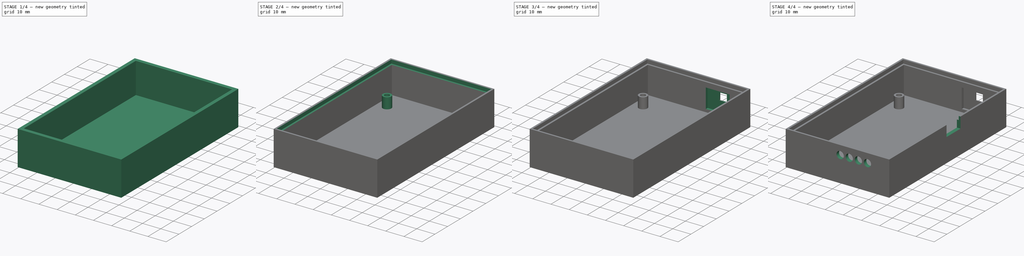
[diagram: build sequence overview — one tinted view per stage of 4, left to right]
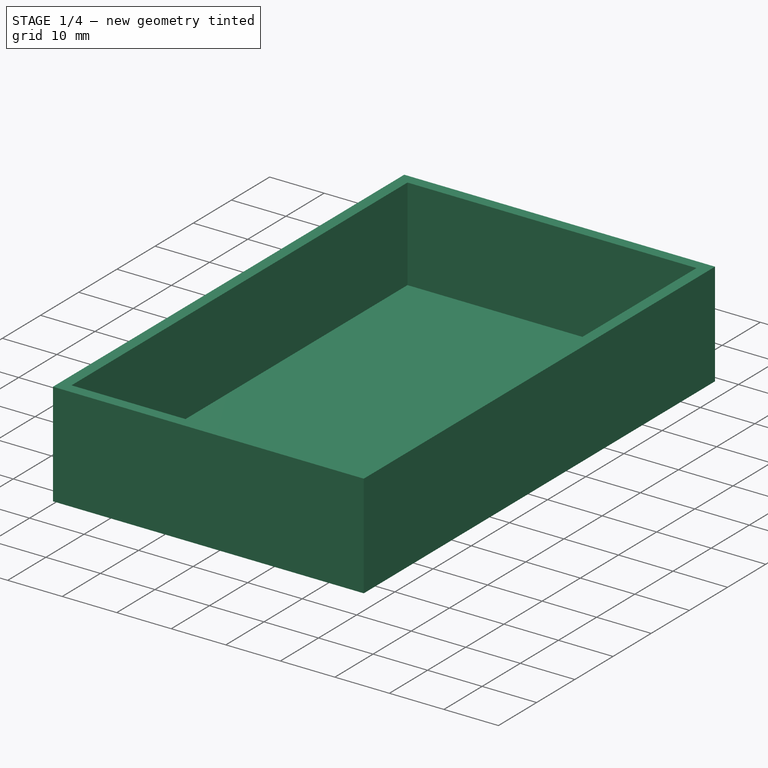
[diagram: stage 1 of 4 — iso view after this stage's code; geometry added in this stage tinted green]
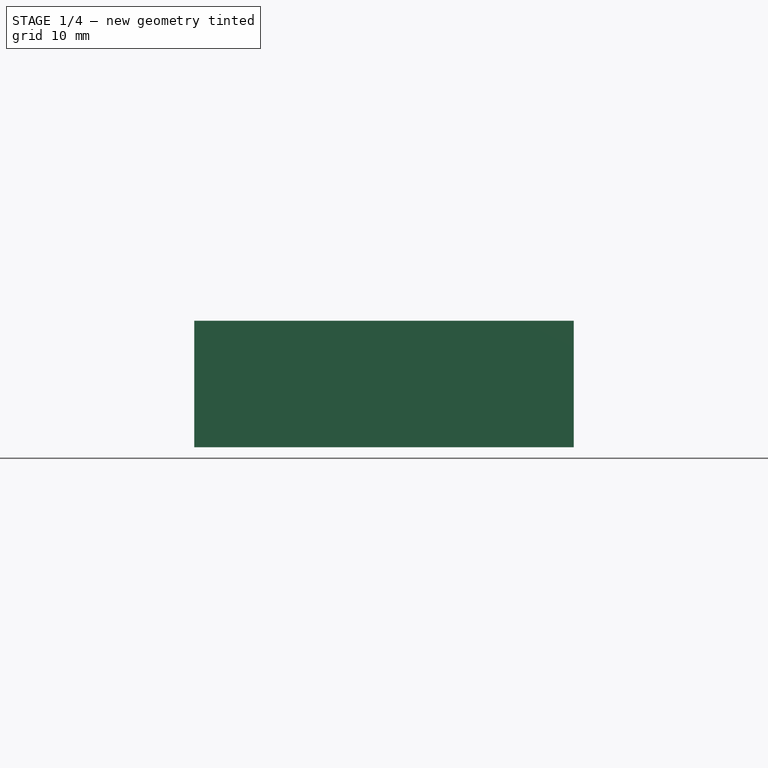
[diagram: stage 1 of 4 — front view after this stage's code; geometry added in this stage tinted green]
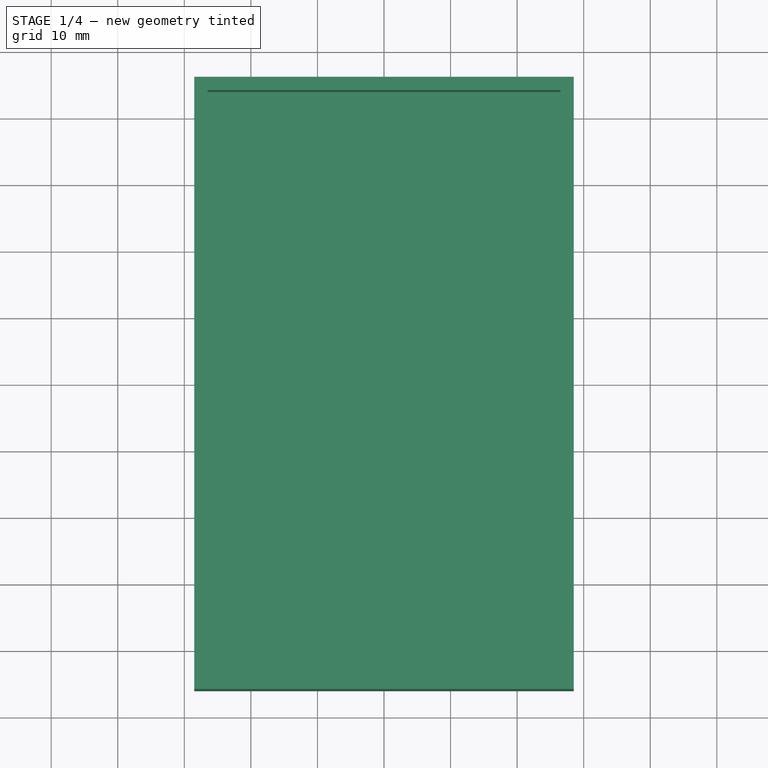
[diagram: stage 1 of 4 — top view after this stage's code; geometry added in this stage tinted green]
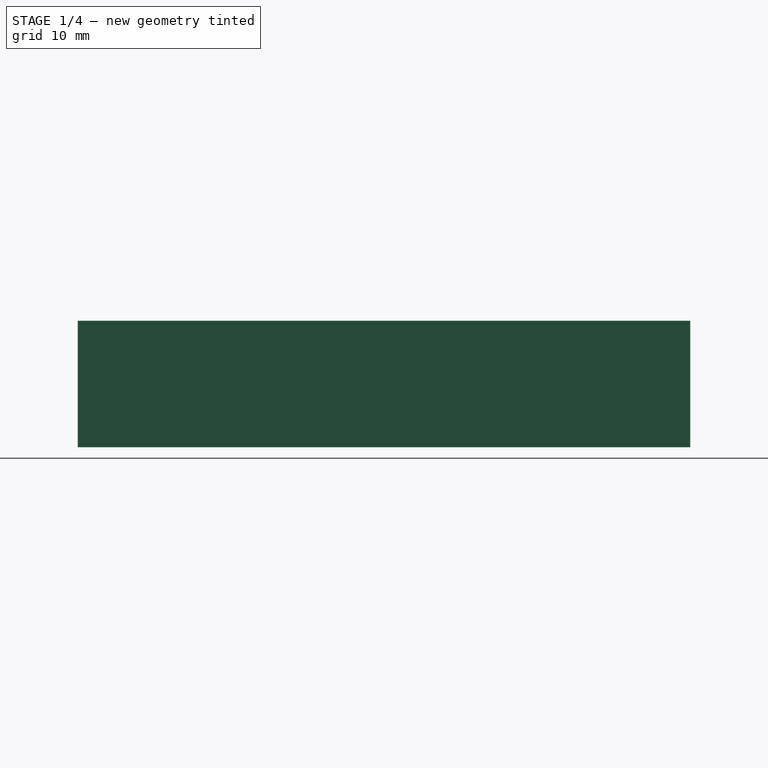
[diagram: stage 1 of 4 — right view after this stage's code; geometry added in this stage tinted green]
FCSTD DOCUMENT  (FreeCAD 0.18R16158 (Git))
Label: weather_station_back
License: All rights reserved
LicenseURL: http://en.wikipedia.org/wiki/All_rights_reserved
objects: Sketcher::SketchObject×9, PartDesign::Pocket×5, PartDesign::Pad×4, Spreadsheet::Sheet×1, PartDesign::Body×1
note: 28 computed .brp shape members not serialized (recipe doc carries the construction recipe); baked Part::Feature solids carry a one-line shape summary decoded from their .brp

FEATURE [Sketcher::SketchObject] Sketch
  MapMode = 5
  Support = -> [XY_Plane]
  sketch-geometry (4):
    g0: LineSegment StartX=-28.5 StartY=46 StartZ=0 EndX=28.5 EndY=46 EndZ=0
    g1: LineSegment StartX=28.5 StartY=46 StartZ=0 EndX=28.5 EndY=-46 EndZ=0
    g2: LineSegment StartX=28.5 StartY=-46 StartZ=0 EndX=-28.5 EndY=-46 EndZ=0
    g3: LineSegment StartX=-28.5 StartY=-46 StartZ=0 EndX=-28.5 EndY=46 EndZ=0
  constraints (11):
    c: Coincident(g0,g1)
    c: Coincident(g1,g2)
    c: Coincident(g2,g3)
    c: Coincident(g3,g0)
    c: Horizontal(g0)
    c: Horizontal(g2)
    c: Vertical(g1)
    c: Vertical(g3)
    c: Symmetric(g0,g1,g-1)
    c: DistanceY(g1,g1) = 92
    c: DistanceX(g0,g0) = 57
FEATURE [PartDesign::Pad] Pad  label="back_wall"
  Length = 2
  Length2 = 100
  Profile = -> Sketch
  Reversed = true
  Type = 0
  expr: Length = Spreadsheet.wall
FEATURE [Sketcher::SketchObject] Sketch001
  ExternalGeometry = -> [Pad]
  MapMode = 5
  Support = -> [Pad]
  expr: Constraints[9] = Spreadsheet.wall
  expr: Constraints[10] = Spreadsheet.wall
  expr: Constraints[8] = Spreadsheet.wall
  expr: Constraints[11] = Spreadsheet.wall
  sketch-geometry (8):
    g0: LineSegment StartX=-26.5 StartY=44 StartZ=0 EndX=26.5 EndY=44 EndZ=0
    g1: LineSegment StartX=26.5 StartY=44 StartZ=0 EndX=26.5 EndY=-44 EndZ=0
    g2: LineSegment StartX=26.5 StartY=-44 StartZ=0 EndX=-26.5 EndY=-44 EndZ=0
    g3: LineSegment StartX=-26.5 StartY=-44 StartZ=0 EndX=-26.5 EndY=44 EndZ=0
    g4: LineSegment StartX=-28.5 StartY=46 StartZ=0 EndX=28.5 EndY=46 EndZ=0
    g5: LineSegment StartX=28.5 StartY=46 StartZ=0 EndX=28.5 EndY=-46 EndZ=0
    g6: LineSegment StartX=28.5 StartY=-46 StartZ=0 EndX=-28.5 EndY=-46 EndZ=0
    g7: LineSegment StartX=-28.5 StartY=-46 StartZ=0 EndX=-28.5 EndY=46 EndZ=0
  constraints (22):
    c: Coincident(g0,g1)
    c: Coincident(g1,g2)
    c: Coincident(g2,g3)
    c: Coincident(g3,g0)
    c: Horizontal(g0)
    c: Horizontal(g2)
    c: Vertical(g1)
    c: Vertical(g3)
    c: DistanceY(g0,g-6) = 2
    c: DistanceY(g-6,g1) = 2
    c: DistanceX(g-4,g0) = 2
    c: DistanceX(g0,g-6) = 2
    c: Coincident(g4,g5)
    c: Coincident(g5,g6)
    c: Coincident(g6,g7)
    c: Coincident(g7,g4)
    c: Horizontal(g4)
    c: Horizontal(g6)
    c: Vertical(g5)
    c: Vertical(g7)
    c: Coincident(g4,g-4)
    c: Coincident(g5,g-6)
FEATURE [PartDesign::Pad] Pad001  label="walls"
  BaseFeature = -> Pad
  Length = 17
  Length2 = 100
  Profile = -> Sketch001
  Type = 0
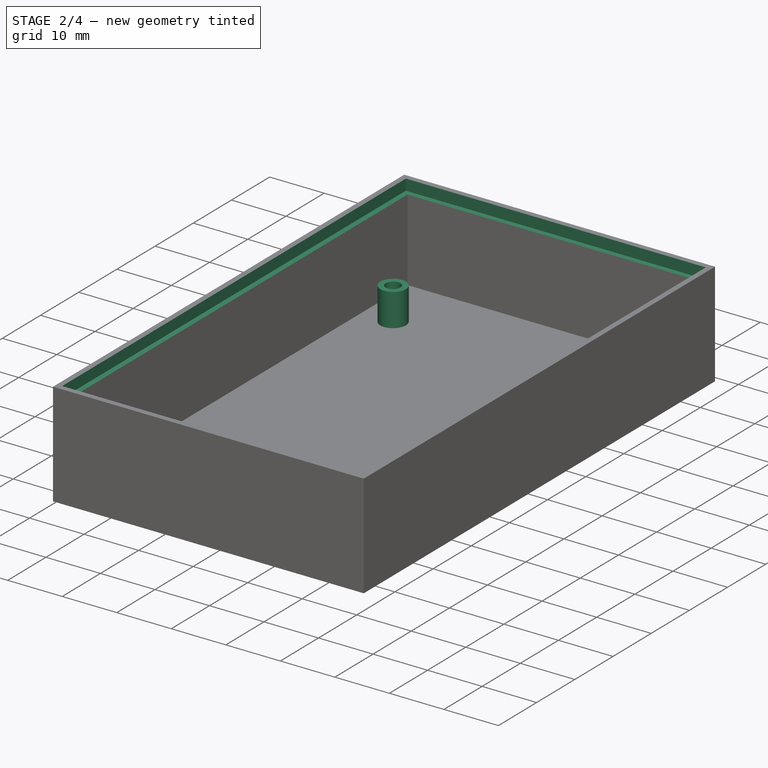
[diagram: stage 2 of 4 — iso view after this stage's code; geometry added in this stage tinted green]
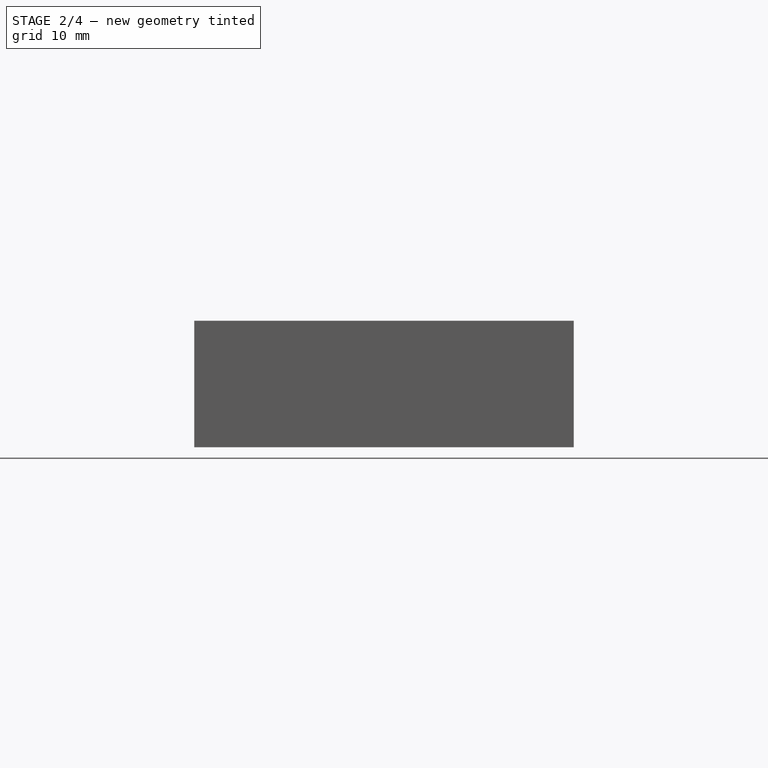
[diagram: stage 2 of 4 — front view after this stage's code; geometry added in this stage tinted green]
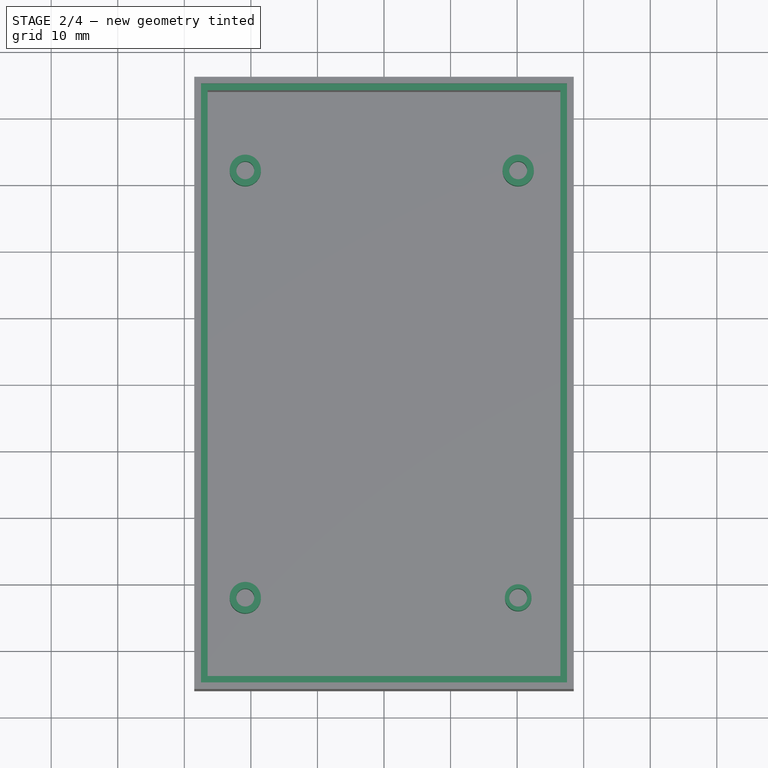
[diagram: stage 2 of 4 — top view after this stage's code; geometry added in this stage tinted green]
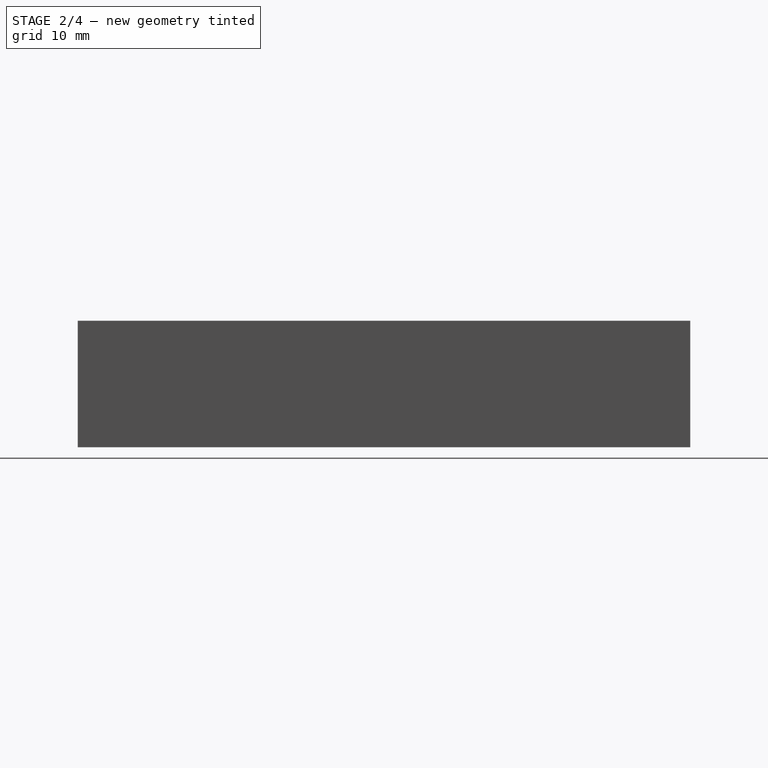
[diagram: stage 2 of 4 — right view after this stage's code; geometry added in this stage tinted green]
FEATURE [Sketcher::SketchObject] Sketch002  label="pcb_towers"
  ExternalGeometry = -> [Pad001,Sketch]
  MapMode = 5
  Support = -> [Pad001]
  expr: Constraints[25] = Spreadsheet.screw_hole_d
  expr: Constraints[24] = Spreadsheet.screw_hole_d
  expr: Constraints[23] = Spreadsheet.screw_hole_d
  expr: Constraints[22] = Spreadsheet.screw_hole_d
  expr: Constraints[2] = Spreadsheet.pcb_towers_d
  expr: Constraints[1] = Spreadsheet.pcb_towers_d
  expr: Constraints[0] = Spreadsheet.pcb_towers_d
  sketch-geometry (14):
    g0: Circle CenterX=-20.8415 CenterY=32.1451 CenterZ=0 NormalX=0 NormalY=0 NormalZ=1 AngleXU=0 Radius=2.35
    g1: Circle CenterX=20.1585 CenterY=32.1451 CenterZ=0 NormalX=0 NormalY=0 NormalZ=1 AngleXU=0 Radius=2.35
    g2: Circle CenterX=20.1585 CenterY=-32.0549 CenterZ=0 NormalX=0 NormalY=0 NormalZ=1 AngleXU=0 Radius=2
    g3: Circle CenterX=-20.8415 CenterY=-32.0549 CenterZ=0 NormalX=0 NormalY=0 NormalZ=1 AngleXU=0 Radius=2.35
    g4: LineSegment [constr] StartX=-20.8415 StartY=32.1451 StartZ=0 EndX=20.1585 EndY=32.1451 EndZ=0
    g5: LineSegment [constr] StartX=-20.8415 StartY=-32.0549 StartZ=0 EndX=20.1585 EndY=-32.0549 EndZ=0
    g6: LineSegment [constr] StartX=-20.8415 StartY=32.1451 StartZ=0 EndX=-20.8415 EndY=-32.0549 EndZ=0
    g7: LineSegment [constr] StartX=20.1585 StartY=32.1451 StartZ=0 EndX=20.1585 EndY=-32.0549 EndZ=0
    g8: Circle CenterX=-20.8415 CenterY=32.1451 CenterZ=0 NormalX=0 NormalY=0 NormalZ=1 AngleXU=0 Radius=1.35
    g9: Circle CenterX=20.1585 CenterY=32.1451 CenterZ=0 NormalX=0 NormalY=0 NormalZ=1 AngleXU=0 Radius=1.35
    g10: Circle CenterX=20.1585 CenterY=-32.0549 CenterZ=0 NormalX=0 NormalY=0 NormalZ=1 AngleXU=0 Radius=1.35
    g11: Circle CenterX=-20.8415 CenterY=-32.0549 CenterZ=0 NormalX=0 NormalY=0 NormalZ=1 AngleXU=0 Radius=1.35
    g12: LineSegment [constr] StartX=20.1585 StartY=-32.0549 StartZ=0 EndX=26.5 EndY=-32.0549 EndZ=0
    g13: LineSegment [constr] StartX=-20.8415 StartY=-32.0549 StartZ=0 EndX=-27.183 EndY=-32.0549 EndZ=0
  constraints (32):
    c: Diameter(g1) = 4.7
    c: Diameter(g0) = 4.7
    c: Diameter(g3) = 4.7
    c: DistanceX(g0,g1) = 41
    c: Diameter(g2) = 4
    c: DistanceY(g3,g0) = 64.2
    c: Coincident(g4,g0)
    c: Coincident(g4,g1)
    c: Horizontal(g4)
    c: Coincident(g5,g3)
    c: Coincident(g5,g2)
    c: Equal(g4,g5)
    c: Coincident(g6,g0)
    c: Coincident(g6,g3)
    c: Vertical(g6)
    c: Coincident(g7,g1)
    c: Coincident(g7,g2)
    c: Equal(g6,g7)
    c: Coincident(g8,g0)
    c: Coincident(g9,g1)
    c: Coincident(g10,g2)
    c: Coincident(g11,g3)
    c: Diameter(g11) = 2.7
    c: Diameter(g8) = 2.7
    c: Diameter(g9) = 2.7
    c: Diameter(g10) = 2.7
    c: Coincident(g12,g2)
    c: PointOnObject(g12,g-5)
    c: Horizontal(g12)
    c: Coincident(g13,g3)
    c: Perpendicular(g6,g13)
    c: Equal(g13,g12)
FEATURE [PartDesign::Pad] Pad002
  BaseFeature = -> Pad001
  Length = 6
  Length2 = 100
  Profile = -> Sketch002
  Type = 0
FEATURE [Spreadsheet::Sheet] Spreadsheet
  cells = A1=walls; B1(wall)=2; A2=pcb_towers_d; B2(pcb_towers_d)=4.7; A3=pcb_fixes_d; B3(pcb_fixes_d)=1.6; A4=pcb_towers_h; B4(pcb_towers_h)=17; A5=pcb_fixes_h; B5(pcb_fixes_h)=3; A6=screw_hole_d; B6(screw_hole_d)=2.7
FEATURE [Sketcher::SketchObject] Sketch003
  ExternalGeometry = -> [Pad002]
  MapMode = 5
  Placement = pos=(0,0,17) rot=(0,0,1;0rad)
  Support = -> [Pad002]
  expr: Constraints[11] = Spreadsheet.wall / 2
  expr: Constraints[10] = Spreadsheet.wall / 2
  expr: Constraints[9] = Spreadsheet.wall / 2
  expr: Constraints[8] = Spreadsheet.wall / 2
  sketch-geometry (4):
    g0: LineSegment StartX=-27.5 StartY=45 StartZ=0 EndX=27.5 EndY=45 EndZ=0
    g1: LineSegment StartX=27.5 StartY=45 StartZ=0 EndX=27.5 EndY=-45 EndZ=0
    g2: LineSegment StartX=27.5 StartY=-45 StartZ=0 EndX=-27.5 EndY=-45 EndZ=0
    g3: LineSegment StartX=-27.5 StartY=-45 StartZ=0 EndX=-27.5 EndY=45 EndZ=0
  constraints (12):
    c: Coincident(g0,g1)
    c: Coincident(g1,g2)
    c: Coincident(g2,g3)
    c: Coincident(g3,g0)
    c: Horizontal(g0)
    c: Horizontal(g2)
    c: Vertical(g1)
    c: Vertical(g3)
    c: DistanceY(g1,g-6) = 1
    c: DistanceX(g-6,g1) = 1
    c: DistanceX(g2,g-6) = 1
    c: DistanceY(g-5,g0) = 1
FEATURE [PartDesign::Pocket] Pocket
  BaseFeature = -> Pad002
  Length = 2
  Length2 = 100
  Profile = -> Sketch003
  Type = 0
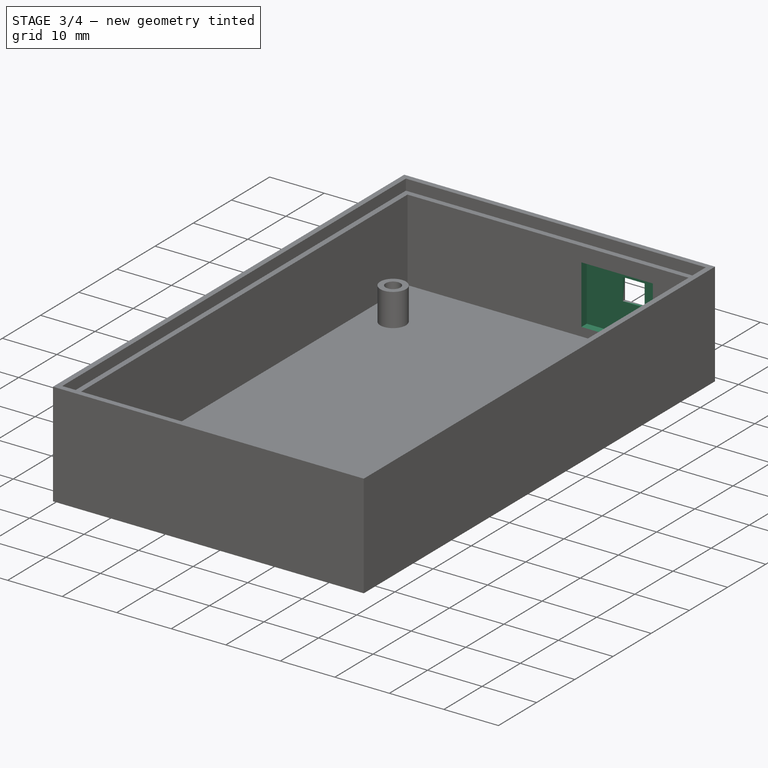
[diagram: stage 3 of 4 — iso view after this stage's code; geometry added in this stage tinted green]
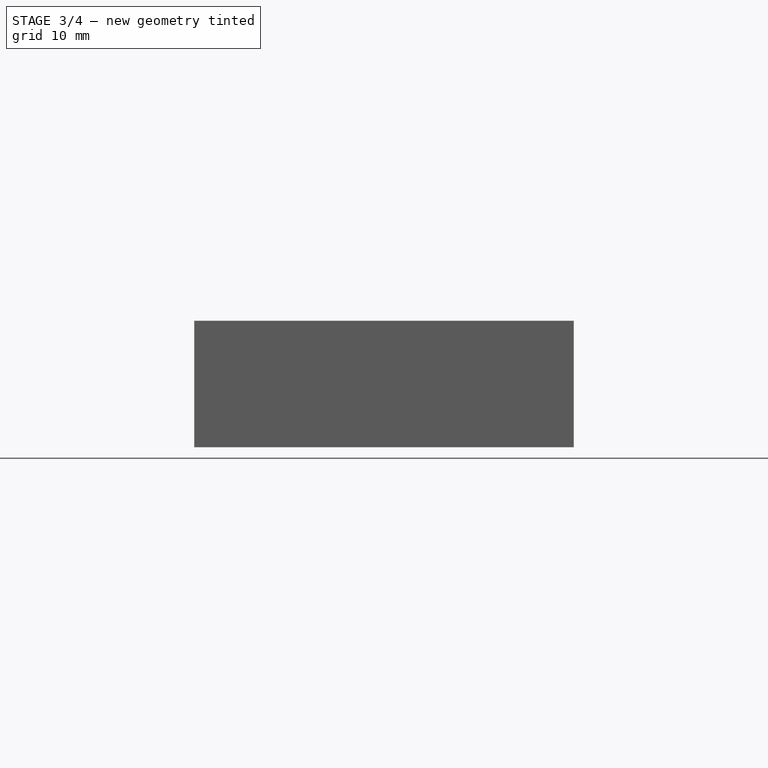
[diagram: stage 3 of 4 — front view after this stage's code; geometry added in this stage tinted green]
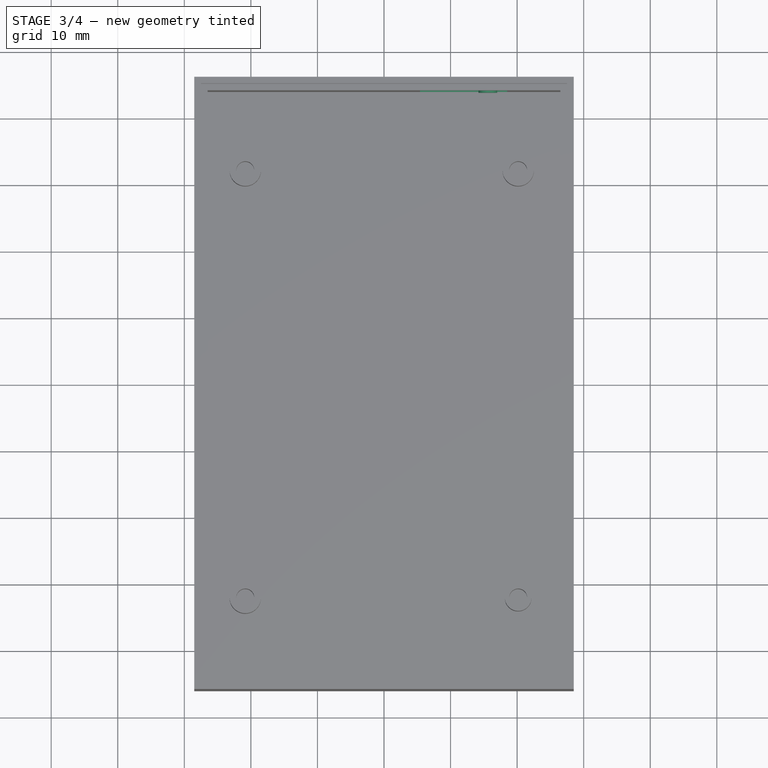
[diagram: stage 3 of 4 — top view after this stage's code; geometry added in this stage tinted green]
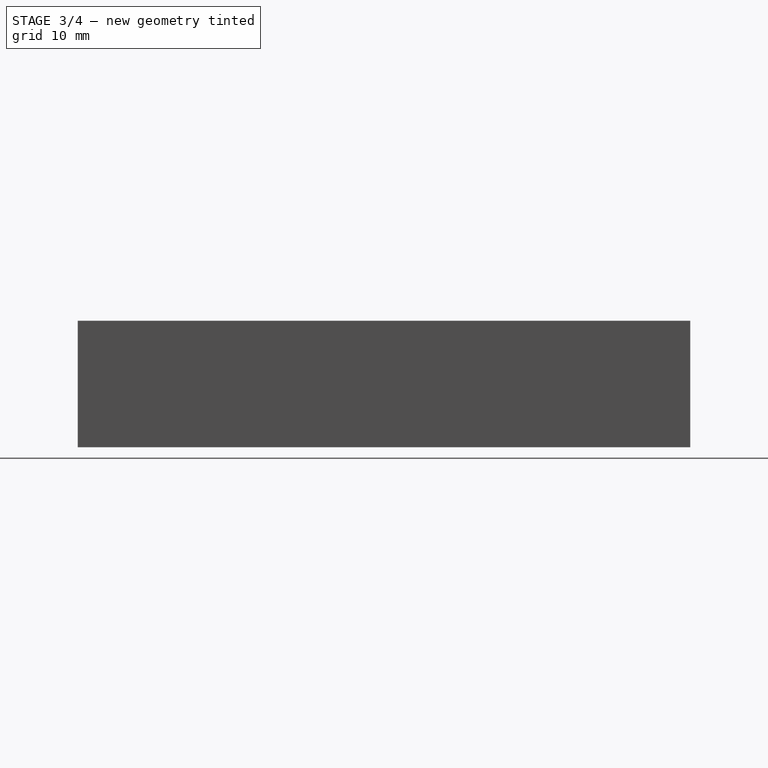
[diagram: stage 3 of 4 — right view after this stage's code; geometry added in this stage tinted green]
FEATURE [Sketcher::SketchObject] Sketch004
  ExternalGeometry = -> [Pocket]
  MapMode = 5
  Placement = pos=(0,44,0) rot=(1,0,0;1.5708rad)
  Support = -> [Pocket]
  sketch-geometry (4):
    g0: LineSegment StartX=5.4 StartY=12.3 StartZ=0 EndX=18.5 EndY=12.3 EndZ=0
    g1: LineSegment StartX=18.5 StartY=12.3 StartZ=0 EndX=18.5 EndY=1.6 EndZ=0
    g2: LineSegment StartX=18.5 StartY=1.6 StartZ=0 EndX=5.4 EndY=1.6 EndZ=0
    g3: LineSegment StartX=5.4 StartY=1.6 StartZ=0 EndX=5.4 EndY=12.3 EndZ=0
  constraints (12):
    c: Coincident(g0,g1)
    c: Coincident(g1,g2)
    c: Coincident(g2,g3)
    c: Coincident(g3,g0)
    c: Horizontal(g0)
    c: Horizontal(g2)
    c: Vertical(g1)
    c: Vertical(g3)
    c: DistanceX(g0,g0) = 13.1
    c: DistanceY(g1,g1) = 10.7
    c: DistanceX(g0,g-3) = 10
    c: DistanceY(g-3,g1) = 1.6
FEATURE [PartDesign::Pocket] Pocket001
  BaseFeature = -> Pocket
  Length = 1.4
  Length2 = 100
  Profile = -> Sketch004
  Type = 0
FEATURE [Sketcher::SketchObject] Sketch005
  ExternalGeometry = -> [Sketch004]
  MapMode = 5
  Placement = pos=(0,45.4,0) rot=(1,0,0;1.5708rad)
  Support = -> [Pocket001]
  sketch-geometry (1):
    g0: Circle CenterX=15.6 CenterY=4.5 CenterZ=0 NormalX=0 NormalY=0 NormalZ=1 AngleXU=0 Radius=1.4
  constraints (3):
    c: DistanceX(g0,g-3) = 2.9
    c: DistanceY(g-3,g0) = 2.9
    c: Diameter(g0) = 2.8
FEATURE [PartDesign::Pad] Pad003
  BaseFeature = -> Pocket001
  Length = 1.6
  Length2 = 100
  Profile = -> Sketch005
  Type = 0
FEATURE [Sketcher::SketchObject] Sketch006
  ExternalGeometry = -> [Sketch004]
  MapMode = 5
  Placement = pos=(0,45.4,0) rot=(1,0,0;1.5708rad)
  Support = -> [Pad003]
  sketch-geometry (4):
    g0: LineSegment StartX=12 StartY=11.1 StartZ=0 EndX=16 EndY=11.1 EndZ=0
    g1: LineSegment StartX=16 StartY=11.1 StartZ=0 EndX=16 EndY=7.1 EndZ=0
    g2: LineSegment StartX=16 StartY=7.1 StartZ=0 EndX=12 EndY=7.1 EndZ=0
    g3: LineSegment StartX=12 StartY=7.1 StartZ=0 EndX=12 EndY=11.1 EndZ=0
  constraints (12):
    c: Coincident(g0,g1)
    c: Coincident(g1,g2)
    c: Coincident(g2,g3)
    c: Coincident(g3,g0)
    c: Horizontal(g0)
    c: Horizontal(g2)
    c: Vertical(g1)
    c: Vertical(g3)
    c: DistanceX(g0,g0) = 4
    c: DistanceY(g1,g1) = 4
    c: DistanceY(g0,g-3) = 1.2
    c: DistanceX(g0,g-3) = 2.5
FEATURE [PartDesign::Pocket] Pocket002
  BaseFeature = -> Pad003
  Length = 0
  Length2 = 100
  Profile = -> Sketch006
  Type = 3
  UpToFace = -> Pad003 [Face4]
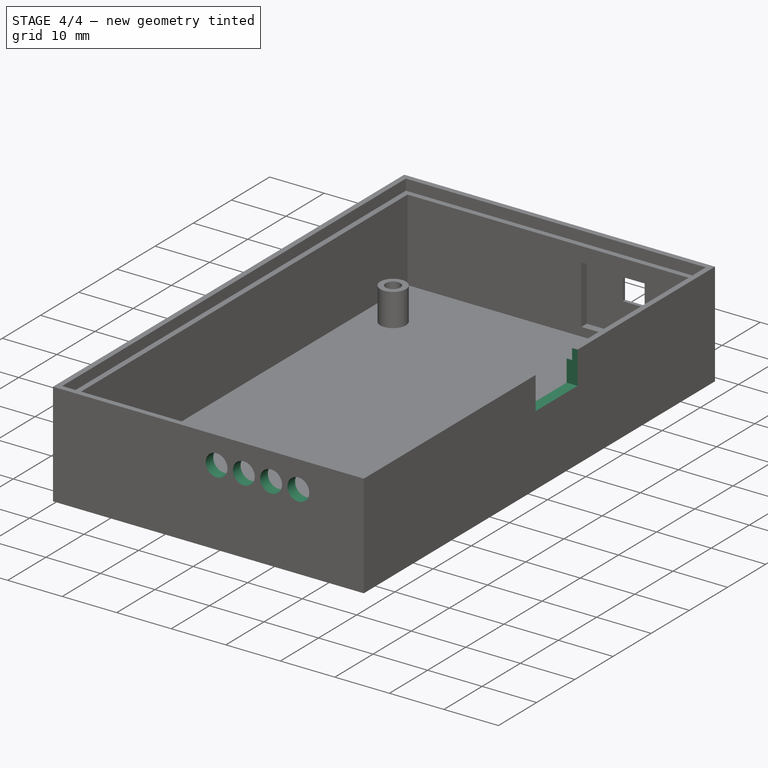
[diagram: stage 4 of 4 — iso view after this stage's code; geometry added in this stage tinted green]
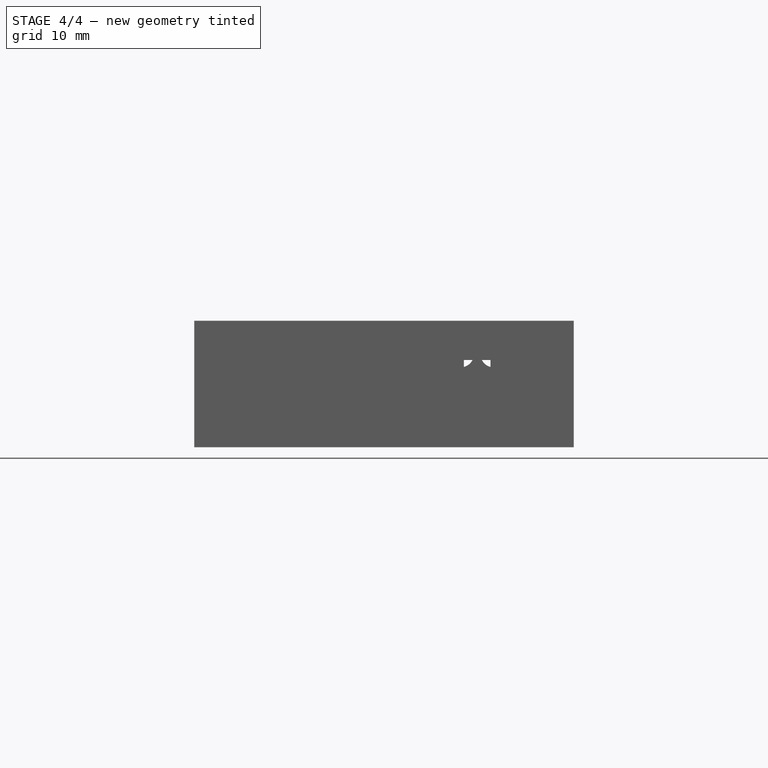
[diagram: stage 4 of 4 — front view after this stage's code; geometry added in this stage tinted green]
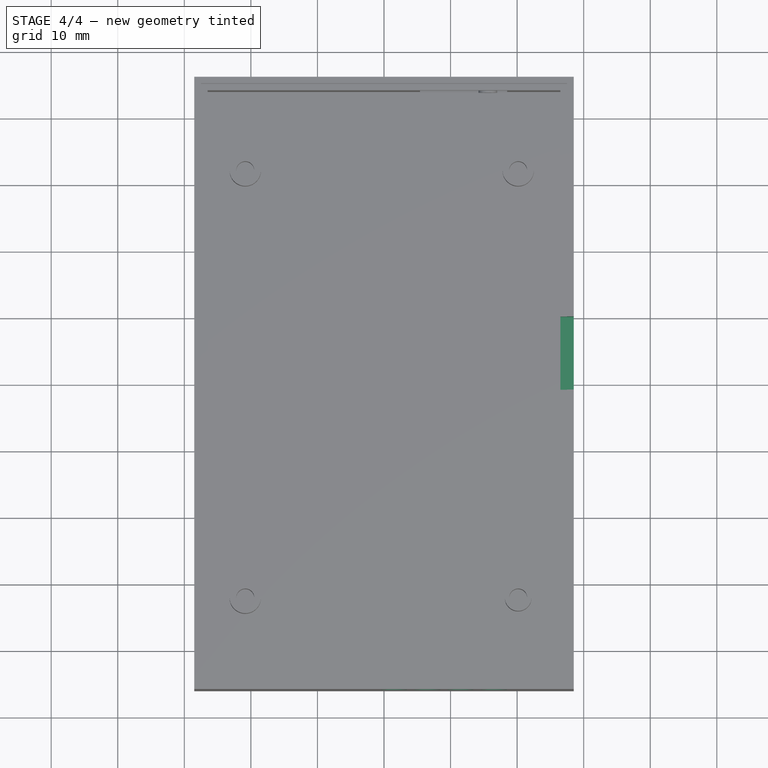
[diagram: stage 4 of 4 — top view after this stage's code; geometry added in this stage tinted green]
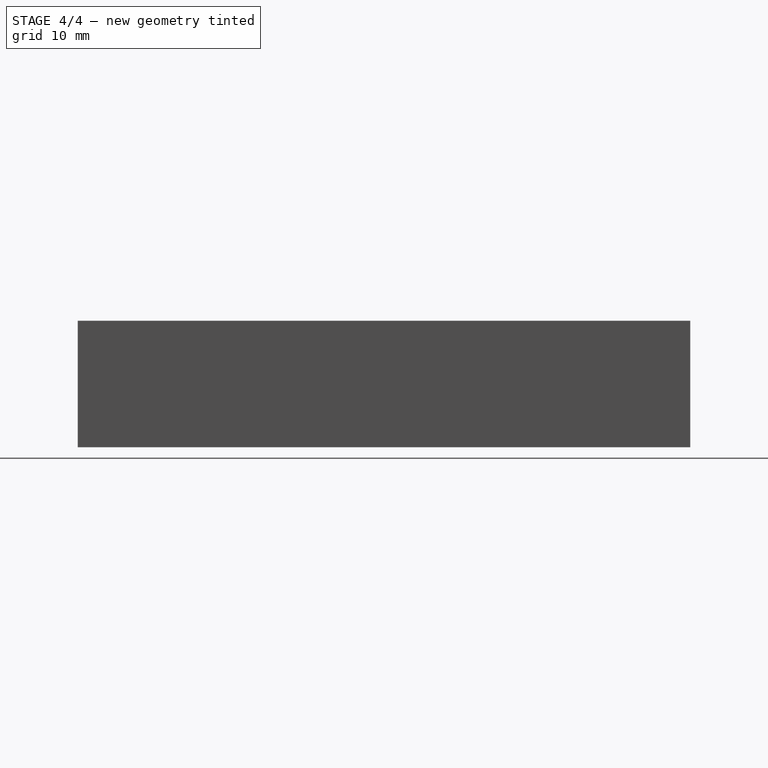
[diagram: stage 4 of 4 — right view after this stage's code; geometry added in this stage tinted green]
FEATURE [Sketcher::SketchObject] Sketch007
  ExternalGeometry = -> [Pad003]
  MapMode = 5
  Placement = pos=(28.5,0,0) rot=(0.57735,0.57735,0.57735;2.0944rad)
  Support = -> [Pad003]
  sketch-geometry (4):
    g0: LineSegment StartX=-1 StartY=17 StartZ=0 EndX=10 EndY=17 EndZ=0
    g1: LineSegment StartX=10 StartY=17 StartZ=0 EndX=10 EndY=11 EndZ=0
    g2: LineSegment StartX=10 StartY=11 StartZ=0 EndX=-1 EndY=11 EndZ=0
    g3: LineSegment StartX=-1 StartY=11 StartZ=0 EndX=-1 EndY=17 EndZ=0
  constraints (12):
    c: Coincident(g0,g1)
    c: Coincident(g1,g2)
    c: Coincident(g2,g3)
    c: Coincident(g3,g0)
    c: Horizontal(g0)
    c: Horizontal(g2)
    c: Vertical(g1)
    c: Vertical(g3)
    c: PointOnObject(g0,g-4)
    c: DistanceX(g0,g-4) = 36
    c: DistanceX(g0,g0) = 11
    c: DistanceY(g1,g1) = 6
FEATURE [PartDesign::Pocket] Pocket003
  BaseFeature = -> Pocket002
  Length = 0
  Length2 = 100
  Profile = -> Sketch007
  Type = 3
  UpToFace = -> Pocket002 [Face27]
FEATURE [Sketcher::SketchObject] Sketch008
  ExternalGeometry = -> [Pocket003,Pad]
  MapMode = 5
  Placement = pos=(0,-46,0) rot=(1,0,0;1.5708rad)
  Support = -> [Pocket003]
  sketch-geometry (4):
    g0: Circle CenterX=6.5 CenterY=12 CenterZ=0 NormalX=0 NormalY=0 NormalZ=1 AngleXU=0 Radius=2
    g1: Circle CenterX=11.5 CenterY=12 CenterZ=0 NormalX=0 NormalY=0 NormalZ=1 AngleXU=0 Radius=2
    g2: Circle CenterX=16.5 CenterY=12 CenterZ=0 NormalX=0 NormalY=0 NormalZ=1 AngleXU=0 Radius=2
    g3: Circle CenterX=1.5 CenterY=12 CenterZ=0 NormalX=0 NormalY=0 NormalZ=1 AngleXU=0 Radius=2
  constraints (12):
    c: DistanceX(g0,g-3) = 22
    c: Diameter(g0) = 4
    c: DistanceX(g1,g-3) = 17
    c: DistanceX(g2,g-3) = 12
    c: Diameter(g1) = 4
    c: Diameter(g2) = 4
    c: DistanceY(g-3,g0) = 12
    c: DistanceY(g-3,g1) = 12
    c: DistanceY(g-3,g2) = 12
    c: Diameter(g3) = 4
    c: DistanceY(g-3,g3) = 12
    c: DistanceX(g3,g-3) = 27
FEATURE [PartDesign::Pocket] Pocket004
  BaseFeature = -> Pocket003
  Length = 5
  Length2 = 100
  Profile = -> Sketch008
  Type = 0
FEATURE [PartDesign::Body] Body
  Group = -> [Sketch,Pad,Sketch001,Pad001,Sketch002,Pad002,Sketch003,Pocket,Sketch004,Pocket001,Sketch005,Pad003,Sketch006,Pocket002,Sketch007,Pocket003,Sketch008,Pocket004]
  Origin = -> Origin
  Tip = -> Pocket004
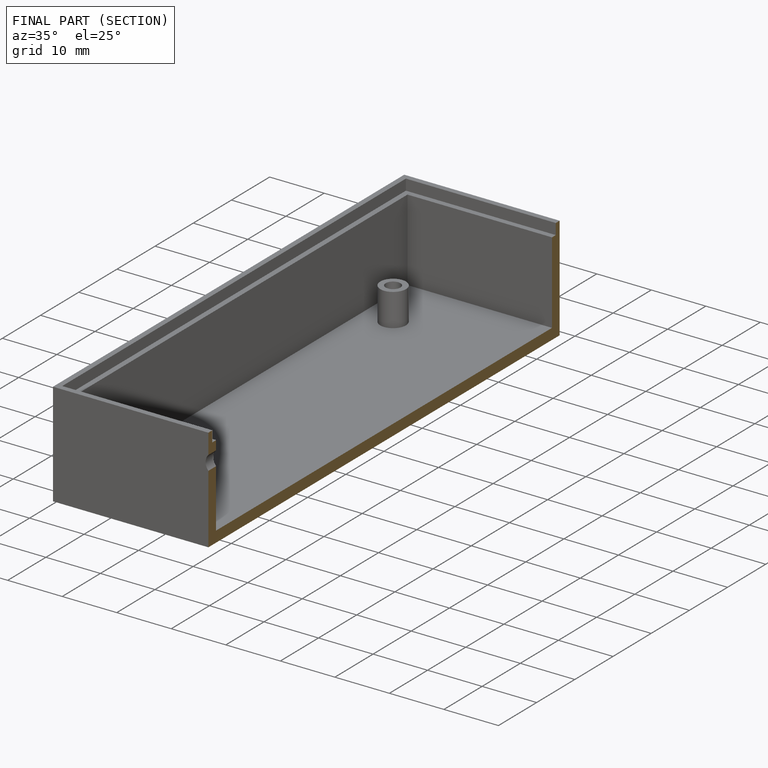
[diagram: finished part — half-section view (interior)]
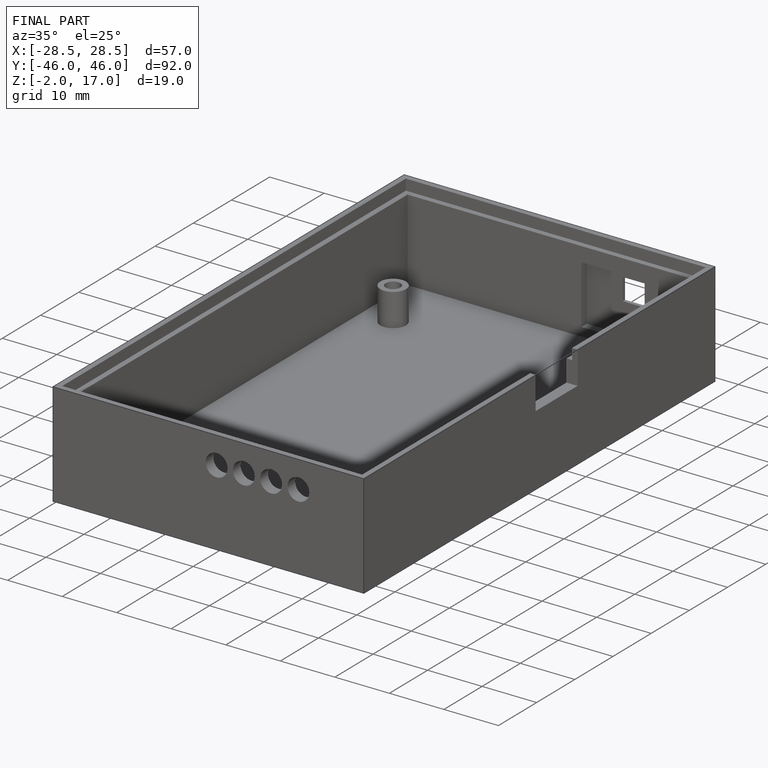
[diagram: finished part — iso view with bounding-box wireframe]
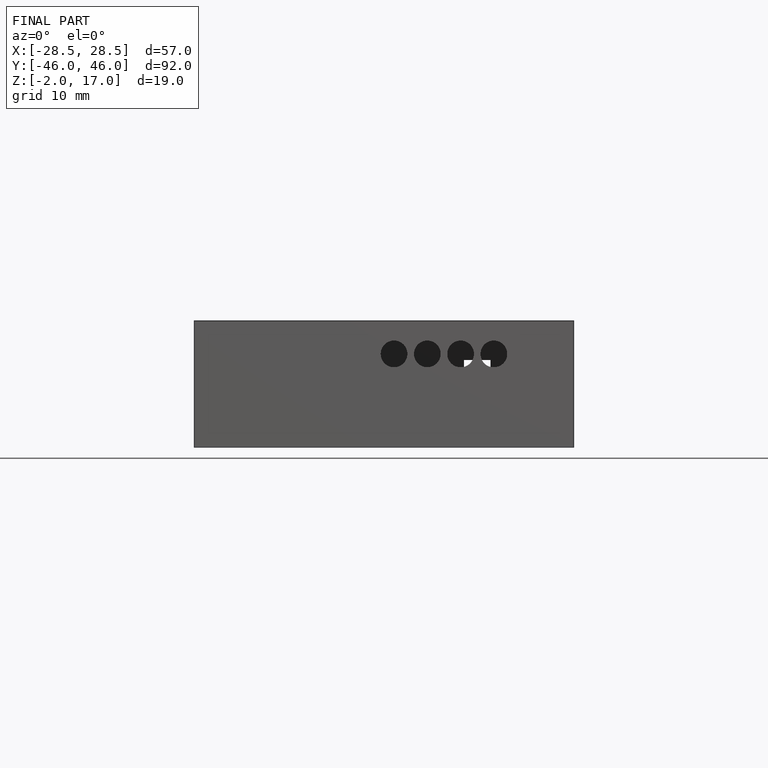
[diagram: finished part — front view with bounding-box wireframe]
